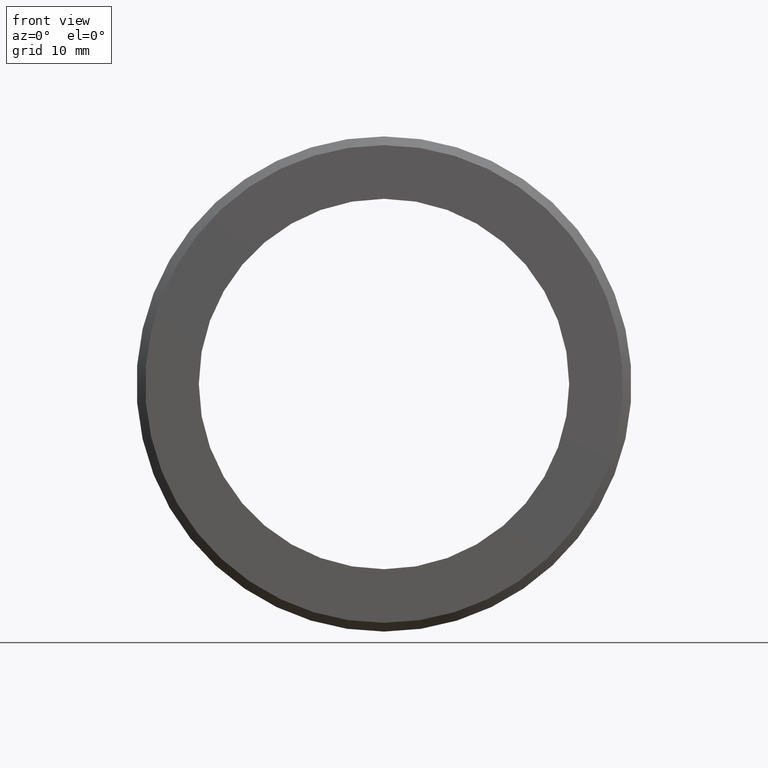
[diagram: clean part render]
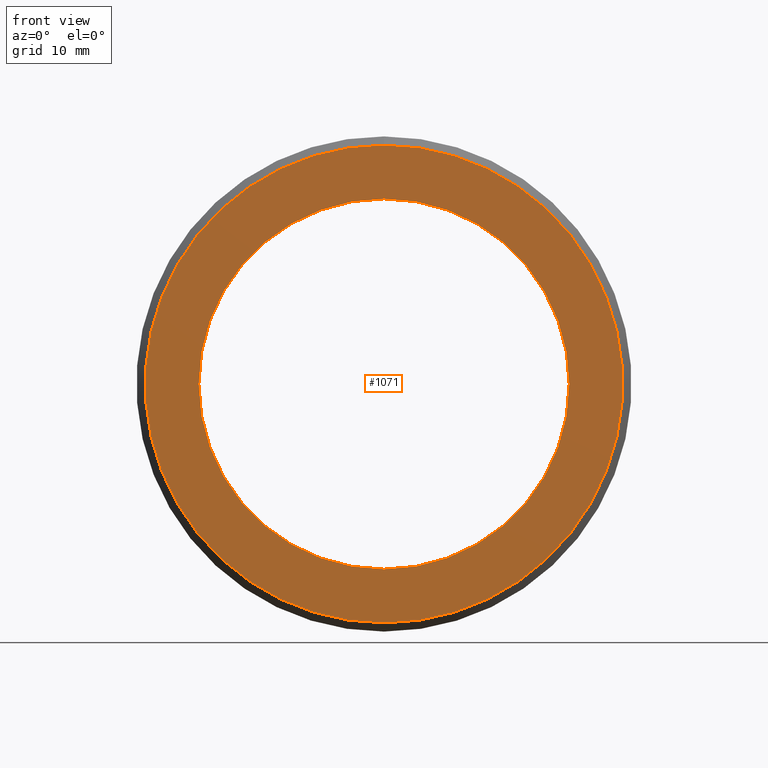
[diagram: same view with one face highlighted and labeled with its STEP entity id]
A machine part, front view. The second image highlights one B-rep face of the part: STEP entity #1071.
In plain terms, the highlighted planar face has unit normal (0, -1, -0).
Its self-contained STEP definition (entity closure, byte-faithful):
#7 = DIRECTION ( 'NONE',  ( 0.0000000000000000000, 0.0000000000000000000, -1.000000000000000000 ) ) ;
#21 = CARTESIAN_POINT ( 'NONE',  ( 0.0000000000000000000, 0.0000000000000000000, 24.50000000000000000 ) ) ;
#30 = PLANE ( 'NONE',  #572 ) ;
#83 = ORIENTED_EDGE ( 'NONE', *, *, #843, .F. ) ;
#109 = CIRCLE ( 'NONE', #823, 19.00000000000000000 ) ;
#112 = DIRECTION ( 'NONE',  ( -0.0000000000000000000, -1.000000000000000000, -0.0000000000000000000 ) ) ;
#114 = CARTESIAN_POINT ( 'NONE',  ( 0.0000000000000000000, 0.0000000000000000000, 0.0000000000000000000 ) ) ;
#152 = VERTEX_POINT ( 'NONE', #601 ) ;
#193 = CARTESIAN_POINT ( 'NONE',  ( 3.031000827889699300E-015, 0.0000000000000000000, -24.50000000000000000 ) ) ;
#213 = CARTESIAN_POINT ( 'NONE',  ( 0.0000000000000000000, 0.0000000000000000000, 0.0000000000000000000 ) ) ;
#239 = ORIENTED_EDGE ( 'NONE', *, *, #860, .T. ) ;
#267 = EDGE_LOOP ( 'NONE', ( #239, #672 ) ) ;
#340 = DIRECTION ( 'NONE',  ( 0.0000000000000000000, 0.0000000000000000000, -1.000000000000000000 ) ) ;
#365 = EDGE_CURVE ( 'NONE', #430, #1023, #532, .T. ) ;
#375 = CARTESIAN_POINT ( 'NONE',  ( 0.0000000000000000000, 0.0000000000000000000, 0.0000000000000000000 ) ) ;
#391 = CIRCLE ( 'NONE', #584, 19.00000000000000000 ) ;
#430 = VERTEX_POINT ( 'NONE', #193 ) ;
#436 = FACE_BOUND ( 'NONE', #1064, .T. ) ;
#459 = FACE_OUTER_BOUND ( 'NONE', #267, .T. ) ;
#461 = AXIS2_PLACEMENT_3D ( 'NONE', #520, #874, #340 ) ;
#506 = DIRECTION ( 'NONE',  ( 0.0000000000000000000, 0.0000000000000000000, -1.000000000000000000 ) ) ;
#512 = CARTESIAN_POINT ( 'NONE',  ( 0.0000000000000000000, 0.0000000000000000000, -19.00000000000000000 ) ) ;
#520 = CARTESIAN_POINT ( 'NONE',  ( 0.0000000000000000000, 0.0000000000000000000, 0.0000000000000000000 ) ) ;
#532 = CIRCLE ( 'NONE', #461, 24.50000000000000000 ) ;
#572 = AXIS2_PLACEMENT_3D ( 'NONE', #727, #766, #897 ) ;
#584 = AXIS2_PLACEMENT_3D ( 'NONE', #213, #985, #813 ) ;
#601 = CARTESIAN_POINT ( 'NONE',  ( 2.326828918379971000E-015, 0.0000000000000000000, 19.00000000000000000 ) ) ;
#646 = ORIENTED_EDGE ( 'NONE', *, *, #953, .F. ) ;
#651 = DIRECTION ( 'NONE',  ( -0.0000000000000000000, -1.000000000000000000, -0.0000000000000000000 ) ) ;
#672 = ORIENTED_EDGE ( 'NONE', *, *, #365, .T. ) ;
#727 = CARTESIAN_POINT ( 'NONE',  ( 19.00000000000000000, 0.0000000000000000000, 0.0000000000000000000 ) ) ;
#766 = DIRECTION ( 'NONE',  ( 0.0000000000000000000, -1.000000000000000000, -0.0000000000000000000 ) ) ;
#813 = DIRECTION ( 'NONE',  ( 0.0000000000000000000, 0.0000000000000000000, -1.000000000000000000 ) ) ;
#823 = AXIS2_PLACEMENT_3D ( 'NONE', #114, #651, #7 ) ;
#843 = EDGE_CURVE ( 'NONE', #152, #905, #109, .T. ) ;
#860 = EDGE_CURVE ( 'NONE', #1023, #430, #997, .T. ) ;
#874 = DIRECTION ( 'NONE',  ( -0.0000000000000000000, -1.000000000000000000, -0.0000000000000000000 ) ) ;
#897 = DIRECTION ( 'NONE',  ( 0.0000000000000000000, 0.0000000000000000000, -1.000000000000000000 ) ) ;
#905 = VERTEX_POINT ( 'NONE', #512 ) ;
#928 = AXIS2_PLACEMENT_3D ( 'NONE', #375, #112, #506 ) ;
#953 = EDGE_CURVE ( 'NONE', #905, #152, #391, .T. ) ;
#985 = DIRECTION ( 'NONE',  ( -0.0000000000000000000, -1.000000000000000000, -0.0000000000000000000 ) ) ;
#997 = CIRCLE ( 'NONE', #928, 24.50000000000000000 ) ;
#1023 = VERTEX_POINT ( 'NONE', #21 ) ;
#1064 = EDGE_LOOP ( 'NONE', ( #646, #83 ) ) ;
#1071 = ADVANCED_FACE ( 'NONE', ( #459, #436 ), #30, .T. ) ;